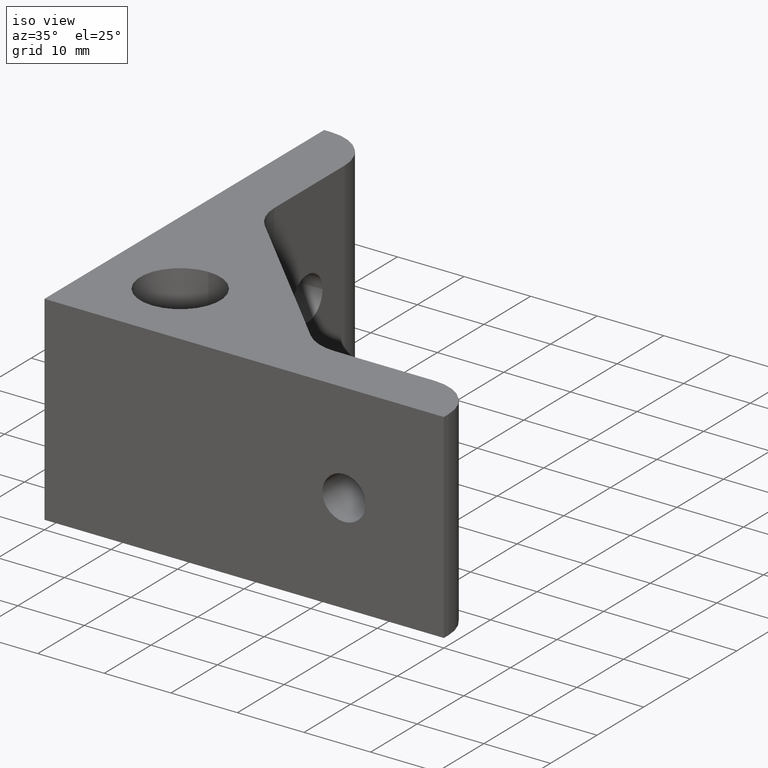
[diagram: clean part render]
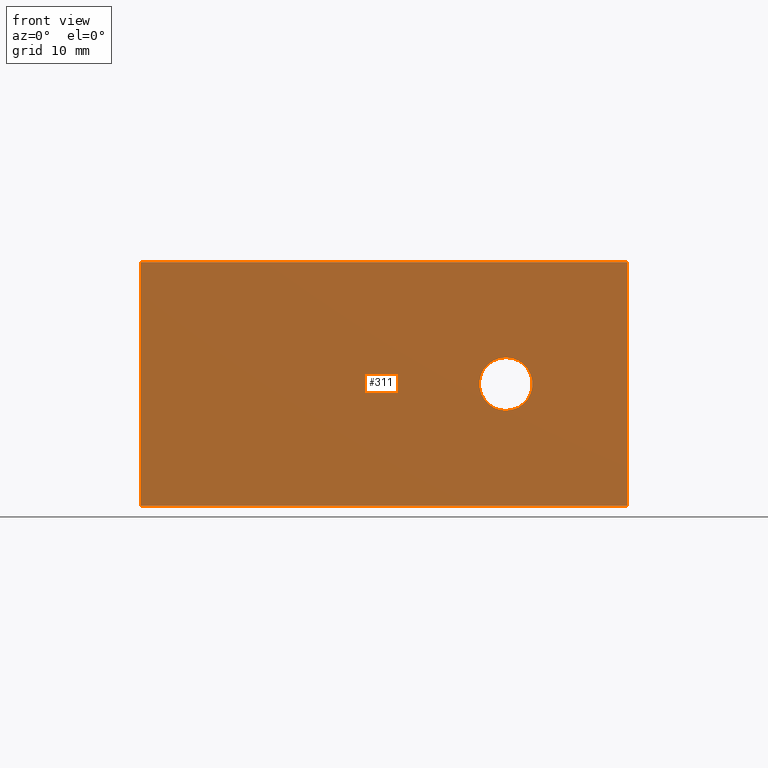
[diagram: tour spotlight — one face highlighted and labeled with its STEP entity id]
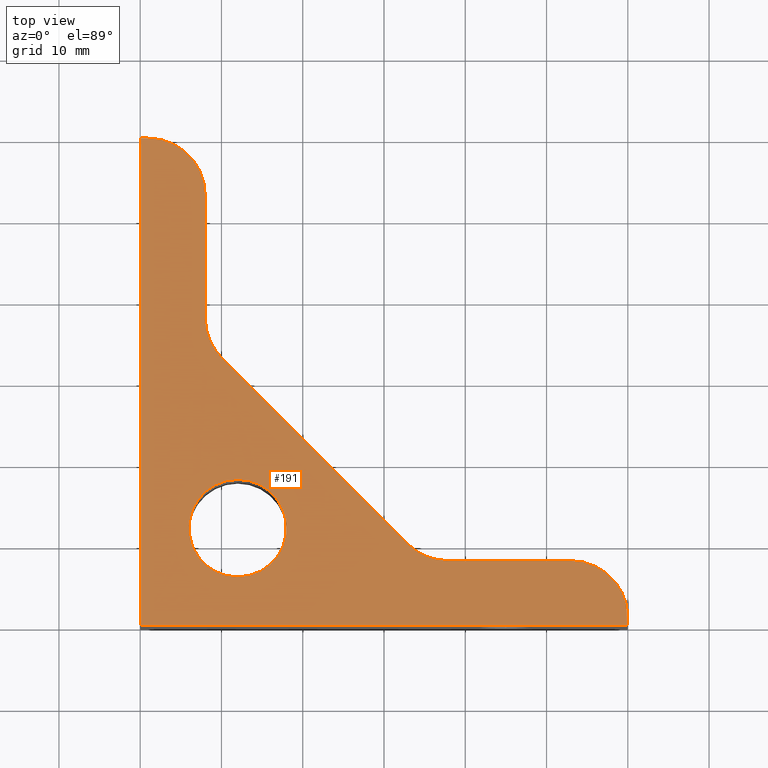
[diagram: tour spotlight — one face highlighted and labeled with its STEP entity id]
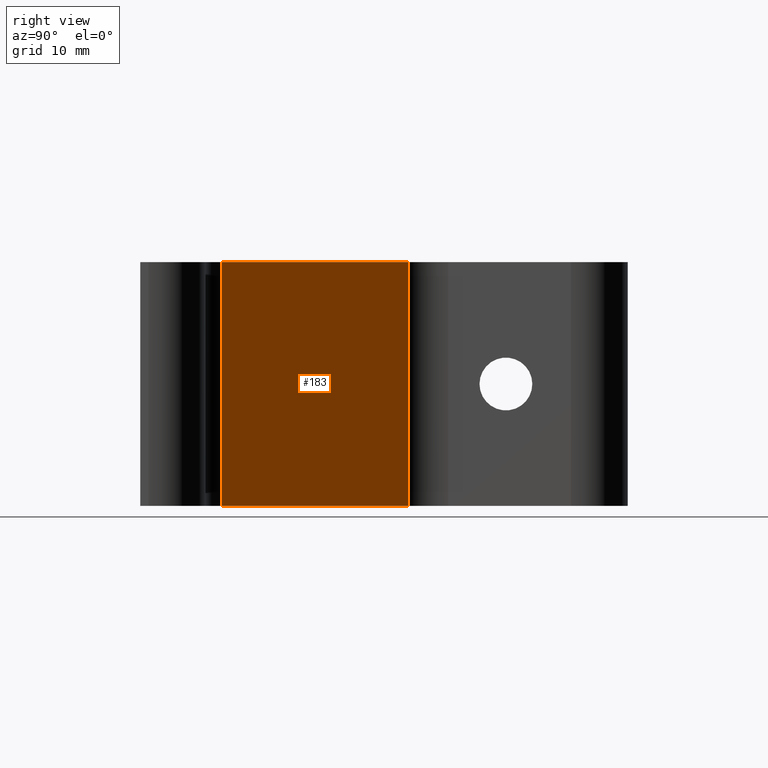
[diagram: tour spotlight — one face highlighted and labeled with its STEP entity id]
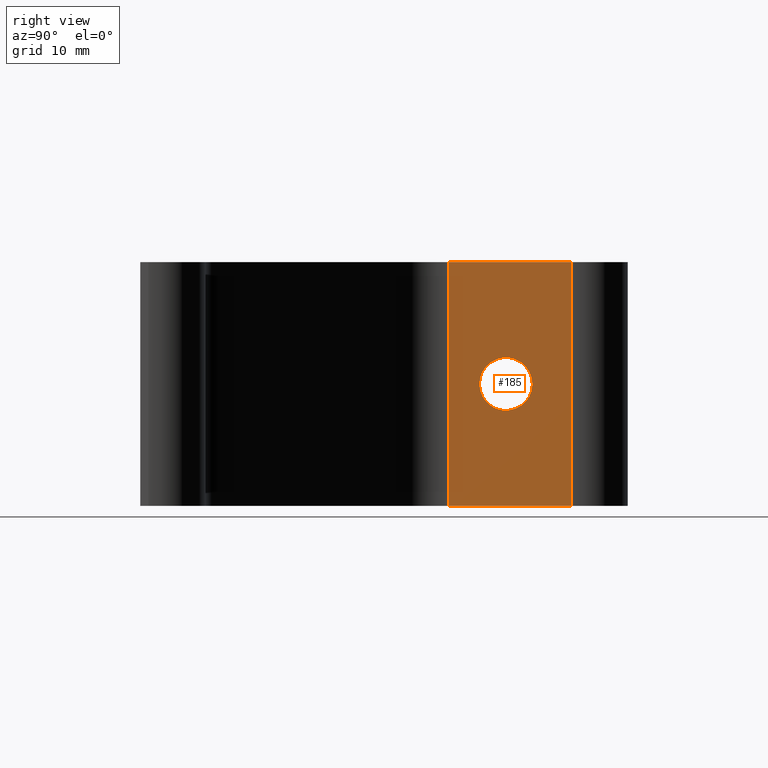
[diagram: tour spotlight — one face highlighted and labeled with its STEP entity id]
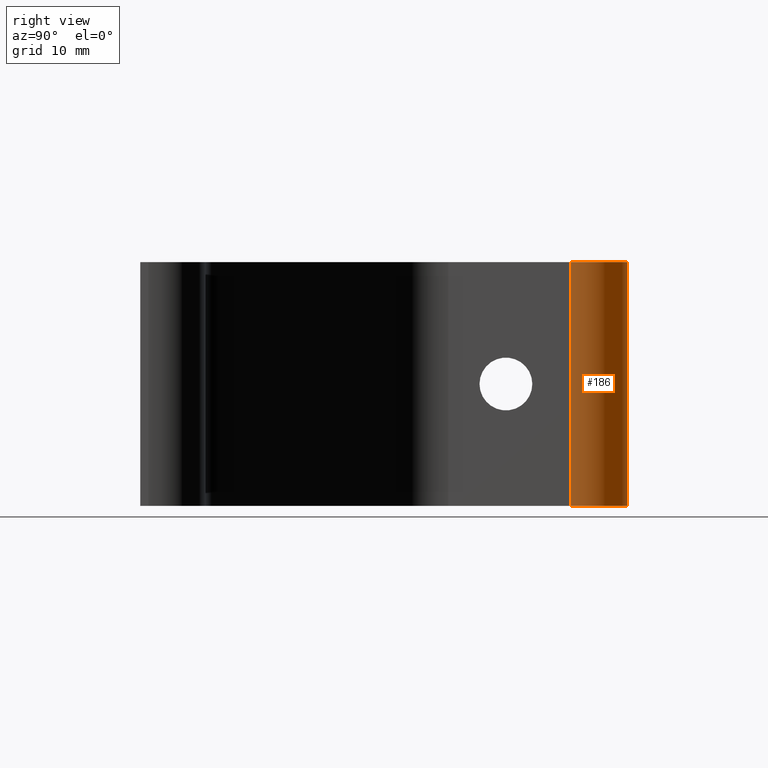
[diagram: tour spotlight — one face highlighted and labeled with its STEP entity id]
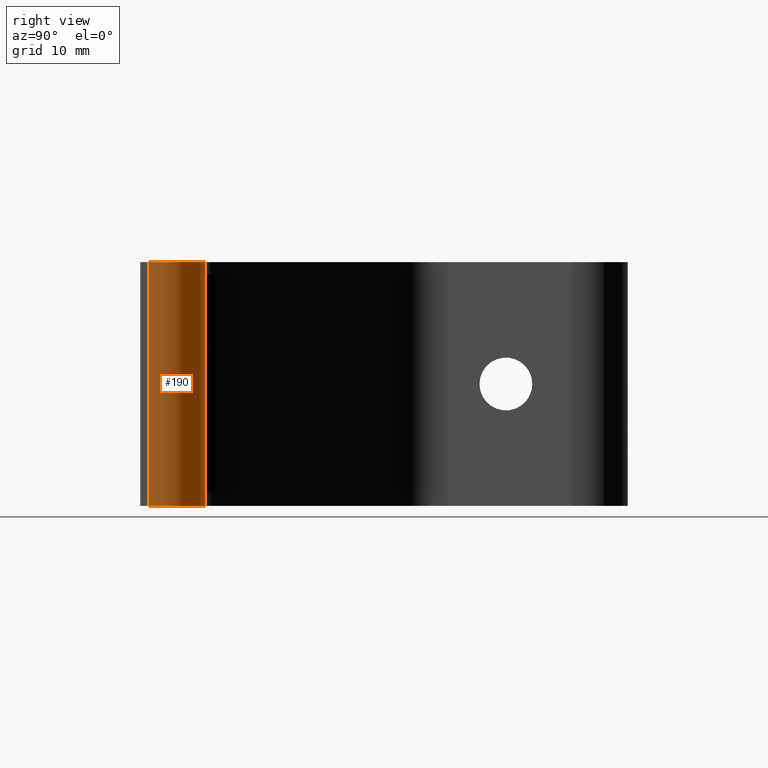
[diagram: tour spotlight — one face highlighted and labeled with its STEP entity id]
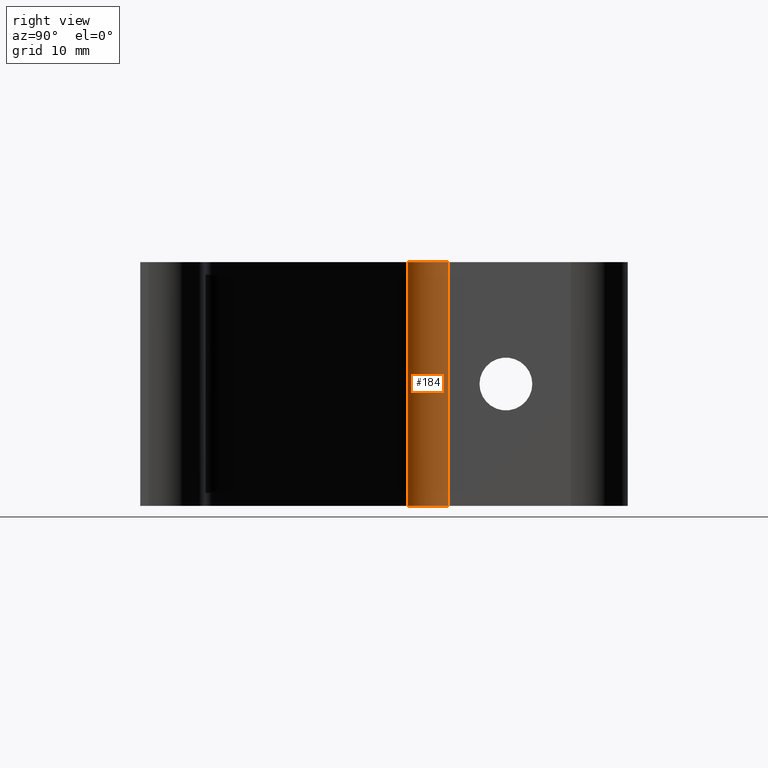
[diagram: tour spotlight — one face highlighted and labeled with its STEP entity id]
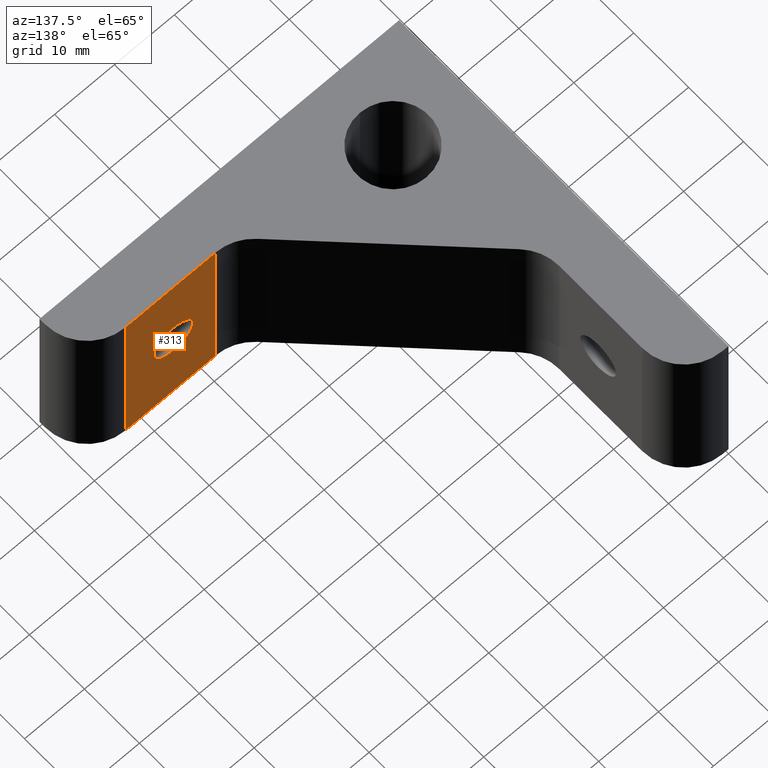
[diagram: tour spotlight — one face highlighted and labeled with its STEP entity id]
A machine part: a face-by-face anatomy tour. The part has 19 B-rep faces; the first image is the clean iso view, then the 8 largest visible faces are spotlighted one at a time (largest first), each with its STEP entity span.

Face 1 — front view, entity #311. In plain terms, the highlighted planar face has unit normal (0, 1, -0).
Definition (entity closure, byte-faithful):
#6 = DIRECTION ( 'NONE',  ( -0.0000000000000000000, -0.0000000000000000000, -1.000000000000000000 ) ) ;
#7 = CARTESIAN_POINT ( 'NONE',  ( 0.0000000000000000000, 0.0000000000000000000, 15.00000000000000000 ) ) ;
#29 = ORIENTED_EDGE ( 'NONE', *, *, #393, .F. ) ;
#30 = ORIENTED_EDGE ( 'NONE', *, *, #378, .F. ) ;
#31 = ORIENTED_EDGE ( 'NONE', *, *, #388, .F. ) ;
#32 = ORIENTED_EDGE ( 'NONE', *, *, #383, .F. ) ;
#33 = ORIENTED_EDGE ( 'NONE', *, *, #395, .F. ) ;
#34 = ORIENTED_EDGE ( 'NONE', *, *, #290, .F. ) ;
#107 = CARTESIAN_POINT ( 'NONE',  ( -30.00000000000000000, 0.0000000000000000000, 0.0000000000000000000 ) ) ;
#108 = DIRECTION ( 'NONE',  ( -1.000000000000000000, 0.0000000000000000000, 0.0000000000000000000 ) ) ;
#111 = CARTESIAN_POINT ( 'NONE',  ( -15.00000000000000000, 0.0000000000000000000, 15.00000000000000000 ) ) ;
#112 = DIRECTION ( 'NONE',  ( 0.0000000000000000000, -1.000000000000000000, -0.0000000000000000000 ) ) ;
#113 = DIRECTION ( 'NONE',  ( 0.0000000000000000000, 0.0000000000000000000, 1.000000000000000000 ) ) ;
#159 = CARTESIAN_POINT ( 'NONE',  ( -15.00000000000000000, 0.0000000000000000000, 11.75000000000000000 ) ) ;
#164 = CARTESIAN_POINT ( 'NONE',  ( -15.00000000000000000, 0.0000000000000000000, 18.25000000000000000 ) ) ;
#166 = CARTESIAN_POINT ( 'NONE',  ( 0.0000000000000000000, 0.0000000000000000000, 30.00000000000000000 ) ) ;
#169 = CARTESIAN_POINT ( 'NONE',  ( 0.0000000000000000000, 0.0000000000000000000, 0.0000000000000000000 ) ) ;
#172 = CARTESIAN_POINT ( 'NONE',  ( -60.00000000000000000, 0.0000000000000000000, 30.00000000000000000 ) ) ;
#196 = VECTOR ( 'NONE', #299, 1000.000000000000000 ) ;
#203 = LINE ( 'NONE', #107, #204 ) ;
#204 = VECTOR ( 'NONE', #108, 1000.000000000000000 ) ;
#207 = CIRCLE ( 'NONE', #486, 3.249999999999999600 ) ;
#272 = DIRECTION ( 'NONE',  ( 0.0000000000000000000, 0.0000000000000000000, 1.000000000000000000 ) ) ;
#273 = DIRECTION ( 'NONE',  ( 0.0000000000000000000, -1.000000000000000000, -0.0000000000000000000 ) ) ;
#274 = CARTESIAN_POINT ( 'NONE',  ( -15.00000000000000000, 0.0000000000000000000, 15.00000000000000000 ) ) ;
#290 = EDGE_CURVE ( 'NONE', #435, #430, #694, .T. ) ;
#299 = DIRECTION ( 'NONE',  ( 1.000000000000000000, -0.0000000000000000000, -0.0000000000000000000 ) ) ;
#301 = CARTESIAN_POINT ( 'NONE',  ( -30.00000000000000000, 0.0000000000000000000, 30.00000000000000000 ) ) ;
#305 = AXIS2_PLACEMENT_3D ( 'NONE', #345, #346, #347 ) ;
#311 = ADVANCED_FACE ( 'NONE', ( #656, #657 ), #344, .F. ) ;
#344 = PLANE ( 'NONE',  #305 ) ;
#345 = CARTESIAN_POINT ( 'NONE',  ( 0.0000000000000000000, 0.0000000000000000000, 0.0000000000000000000 ) ) ;
#346 = DIRECTION ( 'NONE',  ( 0.0000000000000000000, 1.000000000000000000, -0.0000000000000000000 ) ) ;
#347 = DIRECTION ( 'NONE',  ( -1.000000000000000000, 0.0000000000000000000, 0.0000000000000000000 ) ) ;
#365 = DIRECTION ( 'NONE',  ( 0.0000000000000000000, 0.0000000000000000000, 1.000000000000000000 ) ) ;
#366 = CARTESIAN_POINT ( 'NONE',  ( -60.00000000000000000, 0.0000000000000000000, 15.00000000000000000 ) ) ;
#378 = EDGE_CURVE ( 'NONE', #473, #454, #667, .T. ) ;
#383 = EDGE_CURVE ( 'NONE', #439, #451, #677, .T. ) ;
#388 = EDGE_CURVE ( 'NONE', #454, #439, #686, .T. ) ;
#393 = EDGE_CURVE ( 'NONE', #451, #473, #203, .T. ) ;
#395 = EDGE_CURVE ( 'NONE', #430, #435, #207, .T. ) ;
#430 = VERTEX_POINT ( 'NONE', #159 ) ;
#435 = VERTEX_POINT ( 'NONE', #164 ) ;
#439 = VERTEX_POINT ( 'NONE', #166 ) ;
#451 = VERTEX_POINT ( 'NONE', #169 ) ;
#454 = VERTEX_POINT ( 'NONE', #172 ) ;
#473 = VERTEX_POINT ( 'NONE', #495 ) ;
#486 = AXIS2_PLACEMENT_3D ( 'NONE', #111, #112, #113 ) ;
#489 = AXIS2_PLACEMENT_3D ( 'NONE', #274, #273, #272 ) ;
#495 = CARTESIAN_POINT ( 'NONE',  ( -60.00000000000000000, 0.0000000000000000000, 0.0000000000000000000 ) ) ;
#572 = EDGE_LOOP ( 'NONE', ( #32, #31, #30, #29 ) ) ;
#579 = EDGE_LOOP ( 'NONE', ( #34, #33 ) ) ;
#656 = FACE_BOUND ( 'NONE', #579, .T. ) ;
#657 = FACE_OUTER_BOUND ( 'NONE', #572, .T. ) ;
#667 = LINE ( 'NONE', #366, #669 ) ;
#669 = VECTOR ( 'NONE', #365, 1000.000000000000000 ) ;
#677 = LINE ( 'NONE', #7, #678 ) ;
#678 = VECTOR ( 'NONE', #6, 1000.000000000000000 ) ;
#686 = LINE ( 'NONE', #301, #196 ) ;
#694 = CIRCLE ( 'NONE', #489, 3.249999999999999600 ) ;

Face 2 — top view, entity #191. In plain terms, the highlighted planar face has unit normal (0, 0, 1).
Definition (entity closure, byte-faithful):
#1 = AXIS2_PLACEMENT_3D ( 'NONE', #371, #367, #362 ) ;
#8 = DIRECTION ( 'NONE',  ( 0.0000000000000000000, 1.000000000000000000, 0.0000000000000000000 ) ) ;
#53 = ORIENTED_EDGE ( 'NONE', *, *, #404, .T. ) ;
#54 = ORIENTED_EDGE ( 'NONE', *, *, #375, .T. ) ;
#55 = ORIENTED_EDGE ( 'NONE', *, *, #373, .T. ) ;
#56 = ORIENTED_EDGE ( 'NONE', *, *, #412, .T. ) ;
#57 = ORIENTED_EDGE ( 'NONE', *, *, #407, .T. ) ;
#58 = ORIENTED_EDGE ( 'NONE', *, *, #390, .F. ) ;
#59 = ORIENTED_EDGE ( 'NONE', *, *, #389, .T. ) ;
#60 = ORIENTED_EDGE ( 'NONE', *, *, #387, .T. ) ;
#61 = ORIENTED_EDGE ( 'NONE', *, *, #382, .T. ) ;
#62 = ORIENTED_EDGE ( 'NONE', *, *, #388, .T. ) ;
#63 = ORIENTED_EDGE ( 'NONE', *, *, #379, .T. ) ;
#64 = ORIENTED_EDGE ( 'NONE', *, *, #295, .T. ) ;
#65 = ORIENTED_EDGE ( 'NONE', *, *, #376, .T. ) ;
#78 = AXIS2_PLACEMENT_3D ( 'NONE', #140, #141, #142 ) ;
#97 = CARTESIAN_POINT ( 'NONE',  ( -14.55025253150000200, 8.000000000000000000, 30.00000000000000000 ) ) ;
#98 = DIRECTION ( 'NONE',  ( -1.000000000000000000, -0.0000000000000000000, -0.0000000000000000000 ) ) ;
#99 = CARTESIAN_POINT ( 'NONE',  ( -22.10050506300000400, 15.00000000000000000, 30.00000000000000000 ) ) ;
#100 = DIRECTION ( 'NONE',  ( 0.0000000000000000000, -0.0000000000000000000, 1.000000000000000000 ) ) ;
#101 = DIRECTION ( 'NONE',  ( 1.000000000000000000, 0.0000000000000000000, 0.0000000000000000000 ) ) ;
#122 = CARTESIAN_POINT ( 'NONE',  ( -59.50000000000000000, 60.00000000000000000, 30.00000000000000000 ) ) ;
#123 = DIRECTION ( 'NONE',  ( -1.000000000000000000, -0.0000000000000000000, -0.0000000000000000000 ) ) ;
#129 = CARTESIAN_POINT ( 'NONE',  ( -27.05025251999999700, 10.05025254000000200, 30.00000000000000000 ) ) ;
#130 = DIRECTION ( 'NONE',  ( -0.7071067811865474600, 0.7071067811865475700, 0.0000000000000000000 ) ) ;
#140 = CARTESIAN_POINT ( 'NONE',  ( -45.00000000000000000, 37.89949493700000700, 30.00000000000000000 ) ) ;
#141 = DIRECTION ( 'NONE',  ( -0.0000000000000000000, 0.0000000000000000000, -1.000000000000000000 ) ) ;
#142 = DIRECTION ( 'NONE',  ( 1.000000000000000000, 0.0000000000000000000, 0.0000000000000000000 ) ) ;
#149 = CARTESIAN_POINT ( 'NONE',  ( -52.00000001000000100, 37.89949493700000700, 30.00000000000000000 ) ) ;
#150 = CARTESIAN_POINT ( 'NONE',  ( -7.000000000000000000, 8.000000000000000000, 30.00000000000000000 ) ) ;
#156 = CARTESIAN_POINT ( 'NONE',  ( -22.10050506300000400, 8.000000000000000000, 30.00000000000000000 ) ) ;
#158 = CARTESIAN_POINT ( 'NONE',  ( -52.00000001000000100, 52.99999999856427700, 30.00000000000000000 ) ) ;
#163 = CARTESIAN_POINT ( 'NONE',  ( -49.94974746337133100, 32.94974747356550900, 30.00000000000000000 ) ) ;
#165 = CARTESIAN_POINT ( 'NONE',  ( 0.0000000000000000000, 0.9999999985642759000, 30.00000000000000000 ) ) ;
#166 = CARTESIAN_POINT ( 'NONE',  ( 0.0000000000000000000, 0.0000000000000000000, 30.00000000000000000 ) ) ;
#167 = CARTESIAN_POINT ( 'NONE',  ( -27.05025252637134500, 10.05025253656551100, 30.00000000000000000 ) ) ;
#171 = CARTESIAN_POINT ( 'NONE',  ( -48.00000000000000000, 6.000000000000001800, 30.00000000000000400 ) ) ;
#172 = CARTESIAN_POINT ( 'NONE',  ( -60.00000000000000000, 0.0000000000000000000, 30.00000000000000000 ) ) ;
#176 = CARTESIAN_POINT ( 'NONE',  ( -60.00000000000000000, 60.00000000000000000, 30.00000000000000000 ) ) ;
#177 = CARTESIAN_POINT ( 'NONE',  ( -58.99999999928213900, 60.00000000000000000, 30.00000000000000000 ) ) ;
#191 = ADVANCED_FACE ( 'NONE', ( #631, #636 ), #529, .T. ) ;
#195 = CIRCLE ( 'NONE', #550, 7.000000000000000000 ) ;
#196 = VECTOR ( 'NONE', #299, 1000.000000000000000 ) ;
#197 = LINE ( 'NONE', #97, #198 ) ;
#198 = VECTOR ( 'NONE', #98, 1000.000000000000000 ) ;
#199 = CIRCLE ( 'NONE', #549, 7.000000000000004400 ) ;
#211 = LINE ( 'NONE', #122, #213 ) ;
#213 = VECTOR ( 'NONE', #123, 1000.000000000000000 ) ;
#217 = LINE ( 'NONE', #129, #218 ) ;
#218 = VECTOR ( 'NONE', #130, 1000.000000000000000 ) ;
#227 = CIRCLE ( 'NONE', #78, 6.999999999999999100 ) ;
#295 = EDGE_CURVE ( 'NONE', #453, #469, #648, .T. ) ;
#299 = DIRECTION ( 'NONE',  ( 1.000000000000000000, -0.0000000000000000000, -0.0000000000000000000 ) ) ;
#300 = CARTESIAN_POINT ( 'NONE',  ( -7.000000000000000000, 1.000000000000000000, 30.00000000000000000 ) ) ;
#301 = CARTESIAN_POINT ( 'NONE',  ( -30.00000000000000000, 0.0000000000000000000, 30.00000000000000000 ) ) ;
#302 = DIRECTION ( 'NONE',  ( 0.0000000000000000000, 1.000000000000000000, -4.956352788505163300E-016 ) ) ;
#303 = DIRECTION ( 'NONE',  ( -0.0000000000000000000, 2.478176394252582100E-016, 1.000000000000000000 ) ) ;
#307 = AXIS2_PLACEMENT_3D ( 'NONE', #324, #326, #327 ) ;
#324 = CARTESIAN_POINT ( 'NONE',  ( -59.00000000000000700, 53.00000000000000000, 30.00000000000000000 ) ) ;
#326 = DIRECTION ( 'NONE',  ( -0.0000000000000000000, 2.478176394252580600E-016, 1.000000000000000000 ) ) ;
#327 = DIRECTION ( 'NONE',  ( 0.0000000000000000000, 1.000000000000000000, 0.0000000000000000000 ) ) ;
#331 = CARTESIAN_POINT ( 'NONE',  ( -48.00000000000000000, 12.00000000000000000, 30.00000000000000000 ) ) ;
#332 = DIRECTION ( 'NONE',  ( 0.0000000000000000000, -2.891205793294680300E-016, -1.000000000000000000 ) ) ;
#333 = DIRECTION ( 'NONE',  ( 0.0000000000000000000, 1.000000000000000000, -5.782411586589358600E-016 ) ) ;
#355 = CARTESIAN_POINT ( 'NONE',  ( -52.00000001999999500, 30.00000000000000000, 30.00000000000000000 ) ) ;
#356 = DIRECTION ( 'NONE',  ( 0.0000000000000000000, 1.000000000000000000, 0.0000000000000000000 ) ) ;
#357 = CARTESIAN_POINT ( 'NONE',  ( 0.0000000000000000000, 30.00000000000000000, 30.00000000000000000 ) ) ;
#362 = DIRECTION ( 'NONE',  ( 0.0000000000000000000, 1.000000000000000000, -5.782411586589358600E-016 ) ) ;
#363 = DIRECTION ( 'NONE',  ( -0.0000000000000000000, -1.000000000000000000, -0.0000000000000000000 ) ) ;
#364 = CARTESIAN_POINT ( 'NONE',  ( -60.00000000000000000, 30.00000000000000000, 30.00000000000000000 ) ) ;
#367 = DIRECTION ( 'NONE',  ( 0.0000000000000000000, -2.891205793294680300E-016, -1.000000000000000000 ) ) ;
#371 = CARTESIAN_POINT ( 'NONE',  ( -48.00000000000000000, 12.00000000000000000, 30.00000000000000000 ) ) ;
#373 = EDGE_CURVE ( 'NONE', #417, #429, #662, .T. ) ;
#375 = EDGE_CURVE ( 'NONE', #429, #468, #665, .T. ) ;
#376 = EDGE_CURVE ( 'NONE', #469, #453, #666, .T. ) ;
#379 = EDGE_CURVE ( 'NONE', #467, #454, #670, .T. ) ;
#382 = EDGE_CURVE ( 'NONE', #439, #438, #675, .T. ) ;
#387 = EDGE_CURVE ( 'NONE', #438, #418, #195, .T. ) ;
#388 = EDGE_CURVE ( 'NONE', #454, #439, #686, .T. ) ;
#389 = EDGE_CURVE ( 'NONE', #418, #427, #197, .T. ) ;
#390 = EDGE_CURVE ( 'NONE', #445, #427, #199, .T. ) ;
#404 = EDGE_CURVE ( 'NONE', #468, #467, #211, .T. ) ;
#407 = EDGE_CURVE ( 'NONE', #445, #434, #217, .T. ) ;
#412 = EDGE_CURVE ( 'NONE', #434, #417, #227, .T. ) ;
#417 = VERTEX_POINT ( 'NONE', #149 ) ;
#418 = VERTEX_POINT ( 'NONE', #150 ) ;
#427 = VERTEX_POINT ( 'NONE', #156 ) ;
#429 = VERTEX_POINT ( 'NONE', #158 ) ;
#434 = VERTEX_POINT ( 'NONE', #163 ) ;
#438 = VERTEX_POINT ( 'NONE', #165 ) ;
#439 = VERTEX_POINT ( 'NONE', #166 ) ;
#445 = VERTEX_POINT ( 'NONE', #167 ) ;
#453 = VERTEX_POINT ( 'NONE', #171 ) ;
#454 = VERTEX_POINT ( 'NONE', #172 ) ;
#467 = VERTEX_POINT ( 'NONE', #176 ) ;
#468 = VERTEX_POINT ( 'NONE', #177 ) ;
#469 = VERTEX_POINT ( 'NONE', #493 ) ;
#476 = AXIS2_PLACEMENT_3D ( 'NONE', #528, #527, #526 ) ;
#492 = AXIS2_PLACEMENT_3D ( 'NONE', #331, #332, #333 ) ;
#493 = CARTESIAN_POINT ( 'NONE',  ( -48.00000000000000000, 18.00000000000000000, 29.99999999999999600 ) ) ;
#526 = DIRECTION ( 'NONE',  ( 1.000000000000000000, 0.0000000000000000000, 0.0000000000000000000 ) ) ;
#527 = DIRECTION ( 'NONE',  ( 0.0000000000000000000, 0.0000000000000000000, 1.000000000000000000 ) ) ;
#528 = CARTESIAN_POINT ( 'NONE',  ( -60.00000000000000000, 0.0000000000000000000, 30.00000000000000000 ) ) ;
#529 = PLANE ( 'NONE',  #476 ) ;
#549 = AXIS2_PLACEMENT_3D ( 'NONE', #99, #100, #101 ) ;
#550 = AXIS2_PLACEMENT_3D ( 'NONE', #300, #303, #302 ) ;
#563 = EDGE_LOOP ( 'NONE', ( #63, #62, #61, #60, #59, #58, #57, #56, #55, #54, #53 ) ) ;
#565 = EDGE_LOOP ( 'NONE', ( #65, #64 ) ) ;
#631 = FACE_BOUND ( 'NONE', #565, .T. ) ;
#636 = FACE_OUTER_BOUND ( 'NONE', #563, .T. ) ;
#648 = CIRCLE ( 'NONE', #492, 5.999999999999998200 ) ;
#662 = LINE ( 'NONE', #355, #663 ) ;
#663 = VECTOR ( 'NONE', #356, 1000.000000000000000 ) ;
#665 = CIRCLE ( 'NONE', #307, 6.999999999999999100 ) ;
#666 = CIRCLE ( 'NONE', #1, 5.999999999999998200 ) ;
#670 = LINE ( 'NONE', #364, #671 ) ;
#671 = VECTOR ( 'NONE', #363, 1000.000000000000000 ) ;
#675 = LINE ( 'NONE', #357, #679 ) ;
#679 = VECTOR ( 'NONE', #8, 1000.000000000000000 ) ;
#686 = LINE ( 'NONE', #301, #196 ) ;

Face 3 — right view, entity #183. In plain terms, the highlighted planar face has unit normal (-0.7071, -0.7071, 0).
Definition (entity closure, byte-faithful):
#127 = CARTESIAN_POINT ( 'NONE',  ( -49.94974746824267000, 32.94974746863101700, 14.99999999999999800 ) ) ;
#128 = DIRECTION ( 'NONE',  ( -0.0000000000000000000, -0.0000000000000000000, -1.000000000000000000 ) ) ;
#129 = CARTESIAN_POINT ( 'NONE',  ( -27.05025251999999700, 10.05025254000000200, 30.00000000000000000 ) ) ;
#130 = DIRECTION ( 'NONE',  ( -0.7071067811865474600, 0.7071067811865475700, 0.0000000000000000000 ) ) ;
#131 = CARTESIAN_POINT ( 'NONE',  ( -27.05025253124269100, 10.05025253163101500, 14.99999999999999800 ) ) ;
#132 = DIRECTION ( 'NONE',  ( 0.0000000000000000000, 0.0000000000000000000, 1.000000000000000000 ) ) ;
#133 = CARTESIAN_POINT ( 'NONE',  ( -49.94974746799999800, 32.94974746799999100, 0.0000000000000000000 ) ) ;
#134 = DIRECTION ( 'NONE',  ( -0.7071067811865475700, 0.7071067811865474600, -0.0000000000000000000 ) ) ;
#147 = CARTESIAN_POINT ( 'NONE',  ( -27.05025253137134600, 10.05025253156551000, 0.0000000000000000000 ) ) ;
#163 = CARTESIAN_POINT ( 'NONE',  ( -49.94974746337133100, 32.94974747356550900, 30.00000000000000000 ) ) ;
#167 = CARTESIAN_POINT ( 'NONE',  ( -27.05025252637134500, 10.05025253656551100, 30.00000000000000000 ) ) ;
#168 = CARTESIAN_POINT ( 'NONE',  ( -49.94974746837132800, 32.94974746856550500, 0.0000000000000000000 ) ) ;
#183 = ADVANCED_FACE ( 'NONE', ( #620 ), #423, .F. ) ;
#214 = LINE ( 'NONE', #127, #216 ) ;
#216 = VECTOR ( 'NONE', #128, 1000.000000000000000 ) ;
#217 = LINE ( 'NONE', #129, #218 ) ;
#218 = VECTOR ( 'NONE', #130, 1000.000000000000000 ) ;
#219 = LINE ( 'NONE', #131, #220 ) ;
#220 = VECTOR ( 'NONE', #132, 1000.000000000000000 ) ;
#221 = LINE ( 'NONE', #133, #222 ) ;
#222 = VECTOR ( 'NONE', #134, 1000.000000000000000 ) ;
#406 = EDGE_CURVE ( 'NONE', #434, #446, #214, .T. ) ;
#407 = EDGE_CURVE ( 'NONE', #445, #434, #217, .T. ) ;
#408 = EDGE_CURVE ( 'NONE', #415, #445, #219, .T. ) ;
#409 = EDGE_CURVE ( 'NONE', #415, #446, #221, .T. ) ;
#415 = VERTEX_POINT ( 'NONE', #147 ) ;
#423 = PLANE ( 'NONE',  #484 ) ;
#434 = VERTEX_POINT ( 'NONE', #163 ) ;
#437 = DIRECTION ( 'NONE',  ( 0.7071067811865475700, -0.7071067811865474600, 0.0000000000000000000 ) ) ;
#445 = VERTEX_POINT ( 'NONE', #167 ) ;
#446 = VERTEX_POINT ( 'NONE', #168 ) ;
#455 = CARTESIAN_POINT ( 'NONE',  ( -49.94974746799999800, 32.94974746799999100, 0.0000000000000000000 ) ) ;
#459 = DIRECTION ( 'NONE',  ( -0.7071067811865474600, -0.7071067811865475700, 0.0000000000000000000 ) ) ;
#484 = AXIS2_PLACEMENT_3D ( 'NONE', #455, #459, #437 ) ;
#564 = EDGE_LOOP ( 'NONE', ( #601, #599, #598, #597 ) ) ;
#597 = ORIENTED_EDGE ( 'NONE', *, *, #409, .T. ) ;
#598 = ORIENTED_EDGE ( 'NONE', *, *, #408, .F. ) ;
#599 = ORIENTED_EDGE ( 'NONE', *, *, #407, .F. ) ;
#601 = ORIENTED_EDGE ( 'NONE', *, *, #406, .F. ) ;
#620 = FACE_OUTER_BOUND ( 'NONE', #564, .T. ) ;

Face 4 — right view, entity #185. In plain terms, the highlighted planar face has unit normal (-1, 0, 0).
Definition (entity closure, byte-faithful):
#76 = AXIS2_PLACEMENT_3D ( 'NONE', #124, #125, #126 ) ;
#124 = CARTESIAN_POINT ( 'NONE',  ( -52.00000000000000700, 44.99999999999999300, 15.00000000000000000 ) ) ;
#125 = DIRECTION ( 'NONE',  ( 1.000000000000000000, -1.067522139062651900E-015, 0.0000000000000000000 ) ) ;
#126 = DIRECTION ( 'NONE',  ( 2.135044278125303700E-015, 1.000000000000000000, 0.0000000000000000000 ) ) ;
#138 = CARTESIAN_POINT ( 'NONE',  ( -52.00000000000000700, 37.89949493700000700, 15.00000000000000000 ) ) ;
#139 = DIRECTION ( 'NONE',  ( 0.0000000000000000000, 0.0000000000000000000, 1.000000000000000000 ) ) ;
#143 = CARTESIAN_POINT ( 'NONE',  ( -52.00000001999999500, 30.00000000000000000, 0.0000000000000000000 ) ) ;
#144 = DIRECTION ( 'NONE',  ( 0.0000000000000000000, 1.000000000000000000, 0.0000000000000000000 ) ) ;
#145 = CARTESIAN_POINT ( 'NONE',  ( -52.00000000000000700, 52.99999999712855500, 15.00000000000000000 ) ) ;
#146 = DIRECTION ( 'NONE',  ( -0.0000000000000000000, -0.0000000000000000000, 1.000000000000000000 ) ) ;
#149 = CARTESIAN_POINT ( 'NONE',  ( -52.00000001000000100, 37.89949493700000700, 30.00000000000000000 ) ) ;
#153 = CARTESIAN_POINT ( 'NONE',  ( -52.00000001000000100, 37.89949493700000700, 0.0000000000000000000 ) ) ;
#155 = CARTESIAN_POINT ( 'NONE',  ( -52.00000000000000000, 48.24999999999998600, 15.00000000000000000 ) ) ;
#158 = CARTESIAN_POINT ( 'NONE',  ( -52.00000001000000100, 52.99999999856427700, 30.00000000000000000 ) ) ;
#160 = CARTESIAN_POINT ( 'NONE',  ( -52.00000000000000700, 41.74999999999999300, 15.00000000000000000 ) ) ;
#173 = CARTESIAN_POINT ( 'NONE',  ( -52.00000001000000100, 52.99999999856427000, 0.0000000000000000000 ) ) ;
#185 = ADVANCED_FACE ( 'NONE', ( #626, #628 ), #462, .F. ) ;
#215 = CIRCLE ( 'NONE', #76, 3.249999999999996000 ) ;
#223 = LINE ( 'NONE', #138, #225 ) ;
#225 = VECTOR ( 'NONE', #139, 1000.000000000000000 ) ;
#226 = LINE ( 'NONE', #143, #228 ) ;
#228 = VECTOR ( 'NONE', #144, 1000.000000000000000 ) ;
#229 = LINE ( 'NONE', #145, #230 ) ;
#230 = VECTOR ( 'NONE', #146, 1000.000000000000000 ) ;
#278 = DIRECTION ( 'NONE',  ( 2.135044278125303700E-015, 1.000000000000000000, 0.0000000000000000000 ) ) ;
#279 = DIRECTION ( 'NONE',  ( 1.000000000000000000, -1.067522139062651900E-015, 0.0000000000000000000 ) ) ;
#280 = CARTESIAN_POINT ( 'NONE',  ( -52.00000000000000700, 44.99999999999999300, 15.00000000000000000 ) ) ;
#288 = EDGE_CURVE ( 'NONE', #431, #426, #645, .T. ) ;
#355 = CARTESIAN_POINT ( 'NONE',  ( -52.00000001999999500, 30.00000000000000000, 30.00000000000000000 ) ) ;
#356 = DIRECTION ( 'NONE',  ( 0.0000000000000000000, 1.000000000000000000, 0.0000000000000000000 ) ) ;
#373 = EDGE_CURVE ( 'NONE', #417, #429, #662, .T. ) ;
#405 = EDGE_CURVE ( 'NONE', #426, #431, #215, .T. ) ;
#411 = EDGE_CURVE ( 'NONE', #421, #417, #223, .T. ) ;
#413 = EDGE_CURVE ( 'NONE', #421, #457, #226, .T. ) ;
#414 = EDGE_CURVE ( 'NONE', #457, #429, #229, .T. ) ;
#417 = VERTEX_POINT ( 'NONE', #149 ) ;
#421 = VERTEX_POINT ( 'NONE', #153 ) ;
#424 = CARTESIAN_POINT ( 'NONE',  ( -52.00000000000000700, 37.89949493700000700, 0.0000000000000000000 ) ) ;
#425 = DIRECTION ( 'NONE',  ( -1.000000000000000000, 0.0000000000000000000, 0.0000000000000000000 ) ) ;
#426 = VERTEX_POINT ( 'NONE', #155 ) ;
#429 = VERTEX_POINT ( 'NONE', #158 ) ;
#431 = VERTEX_POINT ( 'NONE', #160 ) ;
#457 = VERTEX_POINT ( 'NONE', #173 ) ;
#462 = PLANE ( 'NONE',  #480 ) ;
#480 = AXIS2_PLACEMENT_3D ( 'NONE', #424, #425, #547 ) ;
#487 = AXIS2_PLACEMENT_3D ( 'NONE', #280, #279, #278 ) ;
#547 = DIRECTION ( 'NONE',  ( 0.0000000000000000000, 0.0000000000000000000, 1.000000000000000000 ) ) ;
#566 = EDGE_LOOP ( 'NONE', ( #589, #588, #586, #587 ) ) ;
#581 = EDGE_LOOP ( 'NONE', ( #592, #593 ) ) ;
#586 = ORIENTED_EDGE ( 'NONE', *, *, #414, .T. ) ;
#587 = ORIENTED_EDGE ( 'NONE', *, *, #373, .F. ) ;
#588 = ORIENTED_EDGE ( 'NONE', *, *, #413, .T. ) ;
#589 = ORIENTED_EDGE ( 'NONE', *, *, #411, .F. ) ;
#592 = ORIENTED_EDGE ( 'NONE', *, *, #405, .F. ) ;
#593 = ORIENTED_EDGE ( 'NONE', *, *, #288, .F. ) ;
#626 = FACE_BOUND ( 'NONE', #581, .T. ) ;
#628 = FACE_OUTER_BOUND ( 'NONE', #566, .T. ) ;
#645 = CIRCLE ( 'NONE', #487, 3.249999999999996000 ) ;
#662 = LINE ( 'NONE', #355, #663 ) ;
#663 = VECTOR ( 'NONE', #356, 1000.000000000000000 ) ;

Face 5 — right view, entity #186. In plain terms, the highlighted cylindrical surface (partial cylindrical patch) has radius 7 mm, axis along (0, -0, -1).
Definition (entity closure, byte-faithful):
#70 = ORIENTED_EDGE ( 'NONE', *, *, #375, .F. ) ;
#71 = ORIENTED_EDGE ( 'NONE', *, *, #374, .T. ) ;
#73 = ORIENTED_EDGE ( 'NONE', *, *, #414, .F. ) ;
#74 = ORIENTED_EDGE ( 'NONE', *, *, #297, .F. ) ;
#145 = CARTESIAN_POINT ( 'NONE',  ( -52.00000000000000700, 52.99999999712855500, 15.00000000000000000 ) ) ;
#146 = DIRECTION ( 'NONE',  ( -0.0000000000000000000, -0.0000000000000000000, 1.000000000000000000 ) ) ;
#148 = CARTESIAN_POINT ( 'NONE',  ( -58.99999999928213900, 60.00000000000000000, -8.673617379884039400E-016 ) ) ;
#158 = CARTESIAN_POINT ( 'NONE',  ( -52.00000001000000100, 52.99999999856427700, 30.00000000000000000 ) ) ;
#173 = CARTESIAN_POINT ( 'NONE',  ( -52.00000001000000100, 52.99999999856427000, 0.0000000000000000000 ) ) ;
#177 = CARTESIAN_POINT ( 'NONE',  ( -58.99999999928213900, 60.00000000000000000, 30.00000000000000000 ) ) ;
#186 = ADVANCED_FACE ( 'NONE', ( #591 ), #629, .T. ) ;
#229 = LINE ( 'NONE', #145, #230 ) ;
#230 = VECTOR ( 'NONE', #146, 1000.000000000000000 ) ;
#297 = EDGE_CURVE ( 'NONE', #468, #416, #653, .T. ) ;
#307 = AXIS2_PLACEMENT_3D ( 'NONE', #324, #326, #327 ) ;
#308 = AXIS2_PLACEMENT_3D ( 'NONE', #320, #321, #322 ) ;
#320 = CARTESIAN_POINT ( 'NONE',  ( -59.00000000000000700, 52.99999999999999300, 0.0000000000000000000 ) ) ;
#321 = DIRECTION ( 'NONE',  ( -0.0000000000000000000, 2.478176394252580600E-016, 1.000000000000000000 ) ) ;
#322 = DIRECTION ( 'NONE',  ( 0.0000000000000000000, 1.000000000000000000, -2.478176394252580600E-016 ) ) ;
#324 = CARTESIAN_POINT ( 'NONE',  ( -59.00000000000000700, 53.00000000000000000, 30.00000000000000000 ) ) ;
#326 = DIRECTION ( 'NONE',  ( -0.0000000000000000000, 2.478176394252580600E-016, 1.000000000000000000 ) ) ;
#327 = DIRECTION ( 'NONE',  ( 0.0000000000000000000, 1.000000000000000000, 0.0000000000000000000 ) ) ;
#336 = CARTESIAN_POINT ( 'NONE',  ( -58.99999999856427700, 60.00000000000000000, 15.00000000000000000 ) ) ;
#337 = DIRECTION ( 'NONE',  ( 0.0000000000000000000, 0.0000000000000000000, -1.000000000000000000 ) ) ;
#374 = EDGE_CURVE ( 'NONE', #457, #416, #664, .T. ) ;
#375 = EDGE_CURVE ( 'NONE', #429, #468, #665, .T. ) ;
#414 = EDGE_CURVE ( 'NONE', #457, #429, #229, .T. ) ;
#416 = VERTEX_POINT ( 'NONE', #148 ) ;
#429 = VERTEX_POINT ( 'NONE', #158 ) ;
#457 = VERTEX_POINT ( 'NONE', #173 ) ;
#468 = VERTEX_POINT ( 'NONE', #177 ) ;
#479 = AXIS2_PLACEMENT_3D ( 'NONE', #546, #545, #544 ) ;
#544 = DIRECTION ( 'NONE',  ( 0.0000000000000000000, 1.000000000000000000, 0.0000000000000000000 ) ) ;
#545 = DIRECTION ( 'NONE',  ( 0.0000000000000000000, -2.478176394252580600E-016, -1.000000000000000000 ) ) ;
#546 = CARTESIAN_POINT ( 'NONE',  ( -59.00000000000000700, 53.00000000000000000, 30.00000000000000000 ) ) ;
#568 = EDGE_LOOP ( 'NONE', ( #73, #71, #74, #70 ) ) ;
#591 = FACE_OUTER_BOUND ( 'NONE', #568, .T. ) ;
#629 = CYLINDRICAL_SURFACE ( 'NONE', #479, 6.999999999999999100 ) ;
#653 = LINE ( 'NONE', #336, #654 ) ;
#654 = VECTOR ( 'NONE', #337, 1000.000000000000000 ) ;
#664 = CIRCLE ( 'NONE', #308, 6.999999999999999100 ) ;
#665 = CIRCLE ( 'NONE', #307, 6.999999999999999100 ) ;

Face 6 — right view, entity #190. In plain terms, the highlighted cylindrical surface (partial cylindrical patch) has radius 7 mm, axis along (0, -0, -1).
Definition (entity closure, byte-faithful):
#2 = AXIS2_PLACEMENT_3D ( 'NONE', #9, #11, #12 ) ;
#9 = CARTESIAN_POINT ( 'NONE',  ( -7.000000000000000000, 0.9999999999999926700, 3.469446951953614200E-015 ) ) ;
#10 = DIRECTION ( 'NONE',  ( 0.0000000000000000000, 0.0000000000000000000, 1.000000000000000000 ) ) ;
#11 = DIRECTION ( 'NONE',  ( -0.0000000000000000000, 2.478176394252582100E-016, 1.000000000000000000 ) ) ;
#12 = DIRECTION ( 'NONE',  ( -1.734723475976806900E-015, 1.000000000000000000, -2.478176394252581600E-016 ) ) ;
#13 = CARTESIAN_POINT ( 'NONE',  ( -7.000000000000000000, 8.000000000000000000, 15.00000000000000000 ) ) ;
#18 = ORIENTED_EDGE ( 'NONE', *, *, #386, .T. ) ;
#66 = ORIENTED_EDGE ( 'NONE', *, *, #387, .F. ) ;
#150 = CARTESIAN_POINT ( 'NONE',  ( -7.000000000000000000, 8.000000000000000000, 30.00000000000000000 ) ) ;
#161 = CARTESIAN_POINT ( 'NONE',  ( 0.0000000000000000000, 0.9999999985642721300, 1.734723475976807100E-015 ) ) ;
#165 = CARTESIAN_POINT ( 'NONE',  ( 0.0000000000000000000, 0.9999999985642759000, 30.00000000000000000 ) ) ;
#175 = CARTESIAN_POINT ( 'NONE',  ( -7.000000000000000000, 8.000000000000000000, 8.673617379884035500E-016 ) ) ;
#190 = ADVANCED_FACE ( 'NONE', ( #630 ), #632, .T. ) ;
#195 = CIRCLE ( 'NONE', #550, 7.000000000000000000 ) ;
#300 = CARTESIAN_POINT ( 'NONE',  ( -7.000000000000000000, 1.000000000000000000, 30.00000000000000000 ) ) ;
#302 = DIRECTION ( 'NONE',  ( 0.0000000000000000000, 1.000000000000000000, -4.956352788505163300E-016 ) ) ;
#303 = DIRECTION ( 'NONE',  ( -0.0000000000000000000, 2.478176394252582100E-016, 1.000000000000000000 ) ) ;
#358 = DIRECTION ( 'NONE',  ( -0.0000000000000000000, -0.0000000000000000000, 1.000000000000000000 ) ) ;
#359 = CARTESIAN_POINT ( 'NONE',  ( 0.0000000000000000000, 0.9999999971285519200, 15.00000000000000000 ) ) ;
#381 = EDGE_CURVE ( 'NONE', #432, #438, #676, .T. ) ;
#385 = EDGE_CURVE ( 'NONE', #432, #465, #684, .T. ) ;
#386 = EDGE_CURVE ( 'NONE', #465, #418, #682, .T. ) ;
#387 = EDGE_CURVE ( 'NONE', #438, #418, #195, .T. ) ;
#418 = VERTEX_POINT ( 'NONE', #150 ) ;
#432 = VERTEX_POINT ( 'NONE', #161 ) ;
#438 = VERTEX_POINT ( 'NONE', #165 ) ;
#465 = VERTEX_POINT ( 'NONE', #175 ) ;
#478 = AXIS2_PLACEMENT_3D ( 'NONE', #532, #531, #530 ) ;
#530 = DIRECTION ( 'NONE',  ( 0.0000000000000000000, 1.000000000000000000, -4.956352788505163300E-016 ) ) ;
#531 = DIRECTION ( 'NONE',  ( 0.0000000000000000000, -2.478176394252582100E-016, -1.000000000000000000 ) ) ;
#532 = CARTESIAN_POINT ( 'NONE',  ( -7.000000000000000000, 1.000000000000000000, 30.00000000000000000 ) ) ;
#550 = AXIS2_PLACEMENT_3D ( 'NONE', #300, #303, #302 ) ;
#551 = ORIENTED_EDGE ( 'NONE', *, *, #385, .T. ) ;
#552 = ORIENTED_EDGE ( 'NONE', *, *, #381, .F. ) ;
#575 = EDGE_LOOP ( 'NONE', ( #552, #551, #18, #66 ) ) ;
#630 = FACE_OUTER_BOUND ( 'NONE', #575, .T. ) ;
#632 = CYLINDRICAL_SURFACE ( 'NONE', #478, 7.000000000000000000 ) ;
#673 = VECTOR ( 'NONE', #358, 1000.000000000000000 ) ;
#676 = LINE ( 'NONE', #359, #673 ) ;
#682 = LINE ( 'NONE', #13, #683 ) ;
#683 = VECTOR ( 'NONE', #10, 1000.000000000000000 ) ;
#684 = CIRCLE ( 'NONE', #2, 7.000000000000000900 ) ;

Face 7 — right view, entity #184. In plain terms, the highlighted cylindrical surface (partial cylindrical patch) has radius 7 mm, axis along (0, -0, 1).
Definition (entity closure, byte-faithful):
#77 = AXIS2_PLACEMENT_3D ( 'NONE', #135, #136, #137 ) ;
#78 = AXIS2_PLACEMENT_3D ( 'NONE', #140, #141, #142 ) ;
#127 = CARTESIAN_POINT ( 'NONE',  ( -49.94974746824267000, 32.94974746863101700, 14.99999999999999800 ) ) ;
#128 = DIRECTION ( 'NONE',  ( -0.0000000000000000000, -0.0000000000000000000, -1.000000000000000000 ) ) ;
#135 = CARTESIAN_POINT ( 'NONE',  ( -45.00000000000000000, 37.89949493700000700, 0.0000000000000000000 ) ) ;
#136 = DIRECTION ( 'NONE',  ( -0.0000000000000000000, 0.0000000000000000000, -1.000000000000000000 ) ) ;
#137 = DIRECTION ( 'NONE',  ( 1.000000000000000000, 0.0000000000000000000, 0.0000000000000000000 ) ) ;
#138 = CARTESIAN_POINT ( 'NONE',  ( -52.00000000000000700, 37.89949493700000700, 15.00000000000000000 ) ) ;
#139 = DIRECTION ( 'NONE',  ( 0.0000000000000000000, 0.0000000000000000000, 1.000000000000000000 ) ) ;
#140 = CARTESIAN_POINT ( 'NONE',  ( -45.00000000000000000, 37.89949493700000700, 30.00000000000000000 ) ) ;
#141 = DIRECTION ( 'NONE',  ( -0.0000000000000000000, 0.0000000000000000000, -1.000000000000000000 ) ) ;
#142 = DIRECTION ( 'NONE',  ( 1.000000000000000000, 0.0000000000000000000, 0.0000000000000000000 ) ) ;
#149 = CARTESIAN_POINT ( 'NONE',  ( -52.00000001000000100, 37.89949493700000700, 30.00000000000000000 ) ) ;
#153 = CARTESIAN_POINT ( 'NONE',  ( -52.00000001000000100, 37.89949493700000700, 0.0000000000000000000 ) ) ;
#163 = CARTESIAN_POINT ( 'NONE',  ( -49.94974746337133100, 32.94974747356550900, 30.00000000000000000 ) ) ;
#168 = CARTESIAN_POINT ( 'NONE',  ( -49.94974746837132800, 32.94974746856550500, 0.0000000000000000000 ) ) ;
#184 = ADVANCED_FACE ( 'NONE', ( #623 ), #624, .F. ) ;
#214 = LINE ( 'NONE', #127, #216 ) ;
#216 = VECTOR ( 'NONE', #128, 1000.000000000000000 ) ;
#223 = LINE ( 'NONE', #138, #225 ) ;
#224 = CIRCLE ( 'NONE', #77, 6.999999999999999100 ) ;
#225 = VECTOR ( 'NONE', #139, 1000.000000000000000 ) ;
#227 = CIRCLE ( 'NONE', #78, 6.999999999999999100 ) ;
#406 = EDGE_CURVE ( 'NONE', #434, #446, #214, .T. ) ;
#410 = EDGE_CURVE ( 'NONE', #446, #421, #224, .T. ) ;
#411 = EDGE_CURVE ( 'NONE', #421, #417, #223, .T. ) ;
#412 = EDGE_CURVE ( 'NONE', #434, #417, #227, .T. ) ;
#417 = VERTEX_POINT ( 'NONE', #149 ) ;
#421 = VERTEX_POINT ( 'NONE', #153 ) ;
#434 = VERTEX_POINT ( 'NONE', #163 ) ;
#444 = DIRECTION ( 'NONE',  ( 0.0000000000000000000, -0.0000000000000000000, 1.000000000000000000 ) ) ;
#446 = VERTEX_POINT ( 'NONE', #168 ) ;
#461 = DIRECTION ( 'NONE',  ( 1.000000000000000000, 0.0000000000000000000, 0.0000000000000000000 ) ) ;
#464 = CARTESIAN_POINT ( 'NONE',  ( -45.00000000000000000, 37.89949493700000700, 0.0000000000000000000 ) ) ;
#477 = AXIS2_PLACEMENT_3D ( 'NONE', #464, #444, #461 ) ;
#571 = EDGE_LOOP ( 'NONE', ( #596, #594, #595, #608 ) ) ;
#594 = ORIENTED_EDGE ( 'NONE', *, *, #411, .T. ) ;
#595 = ORIENTED_EDGE ( 'NONE', *, *, #412, .F. ) ;
#596 = ORIENTED_EDGE ( 'NONE', *, *, #410, .T. ) ;
#608 = ORIENTED_EDGE ( 'NONE', *, *, #406, .T. ) ;
#623 = FACE_OUTER_BOUND ( 'NONE', #571, .T. ) ;
#624 = CYLINDRICAL_SURFACE ( 'NONE', #477, 6.999999999999999100 ) ;

Face 8 — auxiliary view, entity #313. In plain terms, the highlighted planar face has unit normal (0, -1, 0).
Definition (entity closure, byte-faithful):
#10 = DIRECTION ( 'NONE',  ( 0.0000000000000000000, 0.0000000000000000000, 1.000000000000000000 ) ) ;
#13 = CARTESIAN_POINT ( 'NONE',  ( -7.000000000000000000, 8.000000000000000000, 15.00000000000000000 ) ) ;
#23 = ORIENTED_EDGE ( 'NONE', *, *, #394, .F. ) ;
#24 = ORIENTED_EDGE ( 'NONE', *, *, #386, .F. ) ;
#25 = ORIENTED_EDGE ( 'NONE', *, *, #389, .F. ) ;
#26 = ORIENTED_EDGE ( 'NONE', *, *, #392, .F. ) ;
#27 = ORIENTED_EDGE ( 'NONE', *, *, #293, .F. ) ;
#28 = ORIENTED_EDGE ( 'NONE', *, *, #396, .F. ) ;
#97 = CARTESIAN_POINT ( 'NONE',  ( -14.55025253150000200, 8.000000000000000000, 30.00000000000000000 ) ) ;
#98 = DIRECTION ( 'NONE',  ( -1.000000000000000000, -0.0000000000000000000, -0.0000000000000000000 ) ) ;
#105 = CARTESIAN_POINT ( 'NONE',  ( -22.10050506300000400, 8.000000000000000000, 15.00000000000000000 ) ) ;
#106 = DIRECTION ( 'NONE',  ( -0.0000000000000000000, -0.0000000000000000000, -1.000000000000000000 ) ) ;
#109 = CARTESIAN_POINT ( 'NONE',  ( -14.55025253150000200, 8.000000000000000000, 0.0000000000000000000 ) ) ;
#110 = DIRECTION ( 'NONE',  ( 1.000000000000000000, 0.0000000000000000000, 0.0000000000000000000 ) ) ;
#114 = CARTESIAN_POINT ( 'NONE',  ( -15.00000000000000000, 8.000000000000000000, 15.00000000000000000 ) ) ;
#115 = DIRECTION ( 'NONE',  ( -0.0000000000000000000, 1.000000000000000000, 0.0000000000000000000 ) ) ;
#116 = DIRECTION ( 'NONE',  ( 0.0000000000000000000, 0.0000000000000000000, 1.000000000000000000 ) ) ;
#150 = CARTESIAN_POINT ( 'NONE',  ( -7.000000000000000000, 8.000000000000000000, 30.00000000000000000 ) ) ;
#152 = CARTESIAN_POINT ( 'NONE',  ( -15.00000000000000000, 8.000000000000000000, 11.75000000000000000 ) ) ;
#156 = CARTESIAN_POINT ( 'NONE',  ( -22.10050506300000400, 8.000000000000000000, 30.00000000000000000 ) ) ;
#162 = CARTESIAN_POINT ( 'NONE',  ( -22.10050506300000400, 8.000000000000000000, 0.0000000000000000000 ) ) ;
#174 = CARTESIAN_POINT ( 'NONE',  ( -15.00000000000000000, 8.000000000000000000, 18.25000000000000000 ) ) ;
#175 = CARTESIAN_POINT ( 'NONE',  ( -7.000000000000000000, 8.000000000000000000, 8.673617379884035500E-016 ) ) ;
#197 = LINE ( 'NONE', #97, #198 ) ;
#198 = VECTOR ( 'NONE', #98, 1000.000000000000000 ) ;
#200 = LINE ( 'NONE', #105, #202 ) ;
#202 = VECTOR ( 'NONE', #106, 1000.000000000000000 ) ;
#205 = LINE ( 'NONE', #109, #206 ) ;
#206 = VECTOR ( 'NONE', #110, 1000.000000000000000 ) ;
#209 = CIRCLE ( 'NONE', #485, 3.249999999999999600 ) ;
#293 = EDGE_CURVE ( 'NONE', #420, #463, #689, .T. ) ;
#306 = AXIS2_PLACEMENT_3D ( 'NONE', #349, #350, #351 ) ;
#313 = ADVANCED_FACE ( 'NONE', ( #658, #659 ), #348, .F. ) ;
#318 = DIRECTION ( 'NONE',  ( 0.0000000000000000000, 0.0000000000000000000, 1.000000000000000000 ) ) ;
#323 = DIRECTION ( 'NONE',  ( -0.0000000000000000000, 1.000000000000000000, 0.0000000000000000000 ) ) ;
#325 = CARTESIAN_POINT ( 'NONE',  ( -15.00000000000000000, 8.000000000000000000, 15.00000000000000000 ) ) ;
#348 = PLANE ( 'NONE',  #306 ) ;
#349 = CARTESIAN_POINT ( 'NONE',  ( -22.10050506300000400, 8.000000000000000000, 0.0000000000000000000 ) ) ;
#350 = DIRECTION ( 'NONE',  ( 0.0000000000000000000, -1.000000000000000000, 0.0000000000000000000 ) ) ;
#351 = DIRECTION ( 'NONE',  ( 1.000000000000000000, 0.0000000000000000000, 0.0000000000000000000 ) ) ;
#386 = EDGE_CURVE ( 'NONE', #465, #418, #682, .T. ) ;
#389 = EDGE_CURVE ( 'NONE', #418, #427, #197, .T. ) ;
#392 = EDGE_CURVE ( 'NONE', #427, #433, #200, .T. ) ;
#394 = EDGE_CURVE ( 'NONE', #433, #465, #205, .T. ) ;
#396 = EDGE_CURVE ( 'NONE', #463, #420, #209, .T. ) ;
#418 = VERTEX_POINT ( 'NONE', #150 ) ;
#420 = VERTEX_POINT ( 'NONE', #152 ) ;
#427 = VERTEX_POINT ( 'NONE', #156 ) ;
#433 = VERTEX_POINT ( 'NONE', #162 ) ;
#463 = VERTEX_POINT ( 'NONE', #174 ) ;
#465 = VERTEX_POINT ( 'NONE', #175 ) ;
#485 = AXIS2_PLACEMENT_3D ( 'NONE', #114, #115, #116 ) ;
#491 = AXIS2_PLACEMENT_3D ( 'NONE', #325, #323, #318 ) ;
#570 = EDGE_LOOP ( 'NONE', ( #28, #27 ) ) ;
#584 = EDGE_LOOP ( 'NONE', ( #26, #25, #24, #23 ) ) ;
#658 = FACE_BOUND ( 'NONE', #570, .T. ) ;
#659 = FACE_OUTER_BOUND ( 'NONE', #584, .T. ) ;
#682 = LINE ( 'NONE', #13, #683 ) ;
#683 = VECTOR ( 'NONE', #10, 1000.000000000000000 ) ;
#689 = CIRCLE ( 'NONE', #491, 3.249999999999999600 ) ;